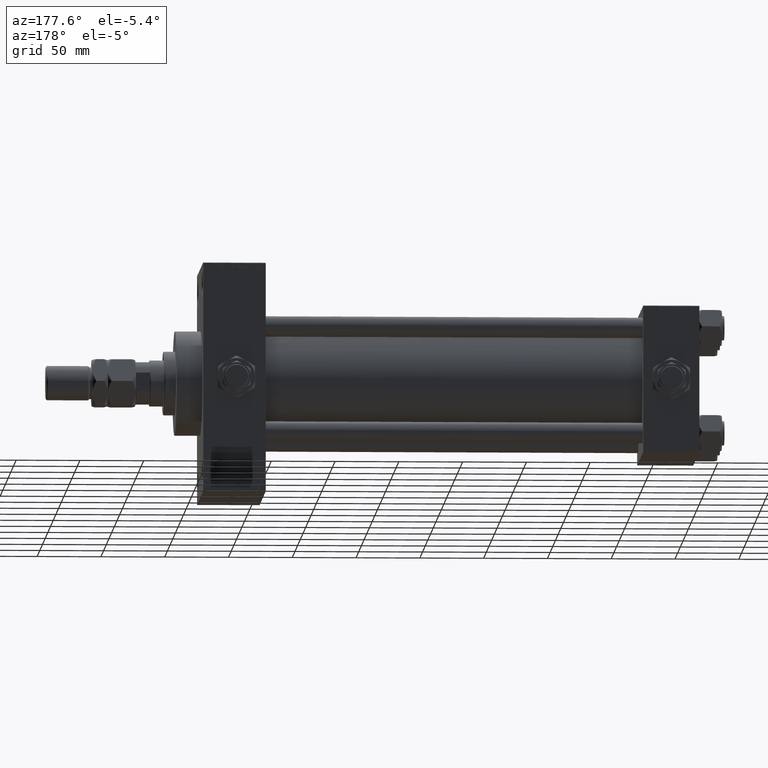
[diagram: clean part render]
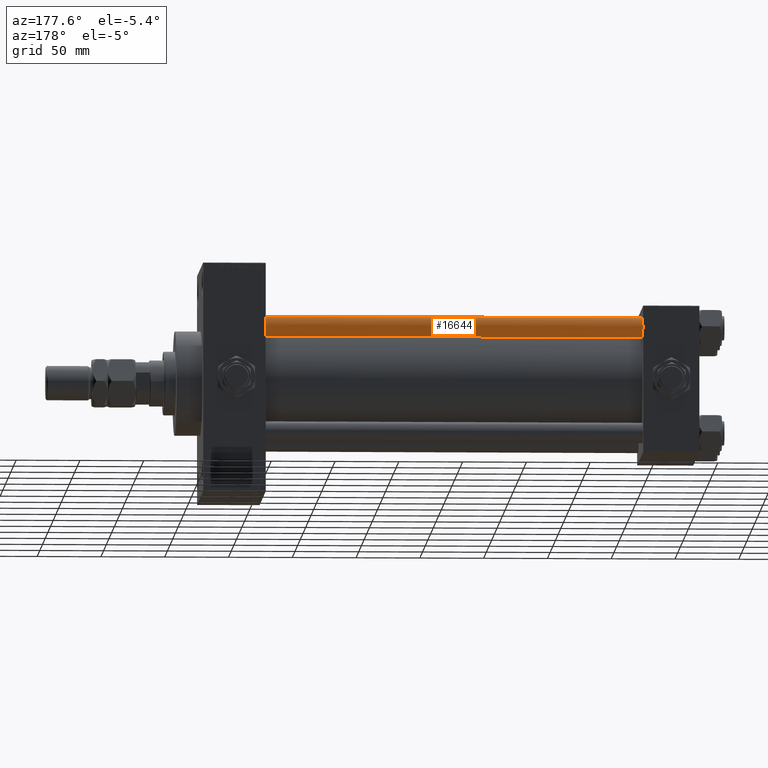
[diagram: same view with one face highlighted and labeled with its STEP entity id]
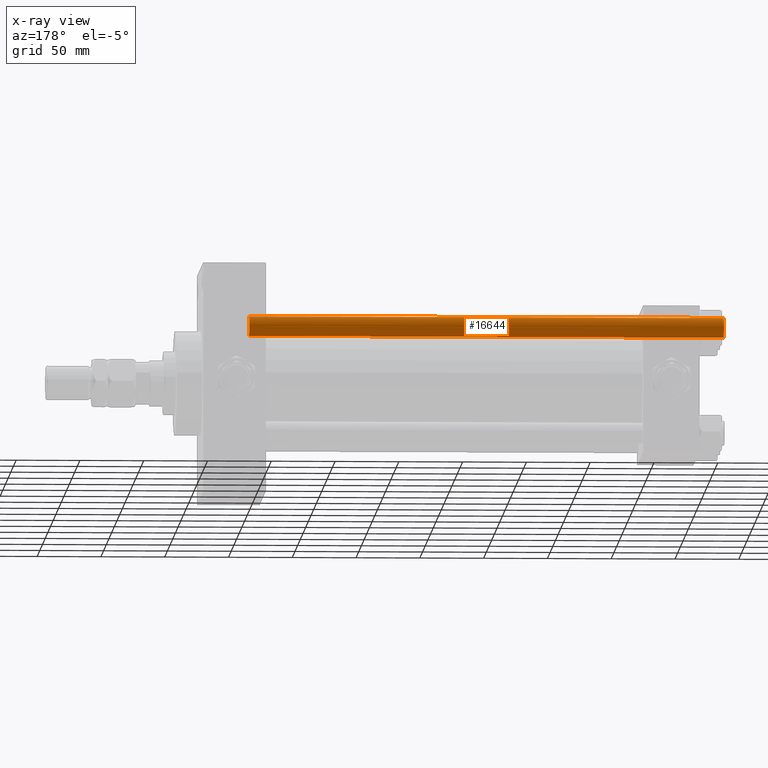
[diagram: x-ray of the same camera — body ghosted, the highlighted face saturated]
A machine part, auxiliary view. The second image highlights one B-rep face of the part: STEP entity #16644.
The next image is the same camera in x-ray: the body ghosted, the highlighted face saturated — about 0% of this face is hidden behind the body in this view.
In plain terms, the highlighted cylindrical surface (edge-blend (fillet) strip) has radius 8 mm, axis along (-1, -0, 0).
Its self-contained STEP definition (entity closure, byte-faithful):
#341 = DIRECTION ( 'NONE',  ( -0.000000000000000000, -0.000000000000000000, -1.000000000000000000 ) ) ;
#1206 = FACE_OUTER_BOUND ( 'NONE', #13353, .T. ) ;
#4843 = CARTESIAN_POINT ( 'NONE',  ( -8.000000000000000000, 0.000000000000000000, 0.5000000000000559552 ) ) ;
#5292 = CARTESIAN_POINT ( 'NONE',  ( -8.000000000000000000, 0.000000000000000000, 372.5000000000000000 ) ) ;
#5370 = CARTESIAN_POINT ( 'NONE',  ( 0.000000000000000000, 0.000000000000000000, 373.0000000000000000 ) ) ;
#7292 = VECTOR ( 'NONE', #341, 1000.000000000000000 ) ;
#11452 = CIRCLE ( 'NONE', #43896, 8.000000000000000000 ) ;
#12036 = EDGE_CURVE ( 'NONE', #20788, #28669, #26884, .T. ) ;
#12423 = VERTEX_POINT ( 'NONE', #4843 ) ;
#13193 = CARTESIAN_POINT ( 'NONE',  ( 8.000000000000000000, 9.797174393178825657E-16, 0.5000000000000559552 ) ) ;
#13353 = EDGE_LOOP ( 'NONE', ( #24563, #28210, #23812, #21048 ) ) ;
#16644 = ADVANCED_FACE ( 'NONE', ( #1206 ), #32696, .T. ) ;
#16668 = DIRECTION ( 'NONE',  ( 0.000000000000000000, 0.000000000000000000, -1.000000000000000000 ) ) ;
#16923 = CARTESIAN_POINT ( 'NONE',  ( 0.000000000000000000, 0.000000000000000000, 372.5000000000000000 ) ) ;
#19560 = AXIS2_PLACEMENT_3D ( 'NONE', #5370, #37107, #45155 ) ;
#20608 = LINE ( 'NONE', #25030, #7292 ) ;
#20788 = VERTEX_POINT ( 'NONE', #5292 ) ;
#21048 = ORIENTED_EDGE ( 'NONE', *, *, #48694, .F. ) ;
#21116 = DIRECTION ( 'NONE',  ( -0.000000000000000000, -0.000000000000000000, 1.000000000000000000 ) ) ;
#22623 = VERTEX_POINT ( 'NONE', #13193 ) ;
#23812 = ORIENTED_EDGE ( 'NONE', *, *, #39635, .T. ) ;
#24563 = ORIENTED_EDGE ( 'NONE', *, *, #12036, .T. ) ;
#25030 = CARTESIAN_POINT ( 'NONE',  ( 8.000000000000000000, 9.797174393178825657E-16, 373.0000000000000000 ) ) ;
#26884 = CIRCLE ( 'NONE', #30198, 8.000000000000000000 ) ;
#28210 = ORIENTED_EDGE ( 'NONE', *, *, #39575, .T. ) ;
#28301 = DIRECTION ( 'NONE',  ( -0.000000000000000000, -0.000000000000000000, -1.000000000000000000 ) ) ;
#28579 = CARTESIAN_POINT ( 'NONE',  ( 8.000000000000000000, 9.797174393178825657E-16, 372.5000000000000000 ) ) ;
#28638 = DIRECTION ( 'NONE',  ( 1.000000000000000000, 0.000000000000000000, 0.000000000000000000 ) ) ;
#28669 = VERTEX_POINT ( 'NONE', #28579 ) ;
#30198 = AXIS2_PLACEMENT_3D ( 'NONE', #16923, #16668, #28638 ) ;
#32081 = DIRECTION ( 'NONE',  ( 1.000000000000000000, 0.000000000000000000, 0.000000000000000000 ) ) ;
#32696 = CYLINDRICAL_SURFACE ( 'NONE', #19560, 8.000000000000000000 ) ;
#32956 = LINE ( 'NONE', #48809, #38256 ) ;
#37107 = DIRECTION ( 'NONE',  ( -0.000000000000000000, -0.000000000000000000, -1.000000000000000000 ) ) ;
#38256 = VECTOR ( 'NONE', #28301, 1000.000000000000000 ) ;
#39575 = EDGE_CURVE ( 'NONE', #28669, #22623, #20608, .T. ) ;
#39635 = EDGE_CURVE ( 'NONE', #22623, #12423, #11452, .T. ) ;
#40393 = CARTESIAN_POINT ( 'NONE',  ( 0.000000000000000000, 0.000000000000000000, 0.5000000000000559552 ) ) ;
#43896 = AXIS2_PLACEMENT_3D ( 'NONE', #40393, #21116, #32081 ) ;
#45155 = DIRECTION ( 'NONE',  ( -1.000000000000000000, 0.000000000000000000, 0.000000000000000000 ) ) ;
#48694 = EDGE_CURVE ( 'NONE', #20788, #12423, #32956, .T. ) ;
#48809 = CARTESIAN_POINT ( 'NONE',  ( -8.000000000000000000, 0.000000000000000000, 373.0000000000000000 ) ) ;